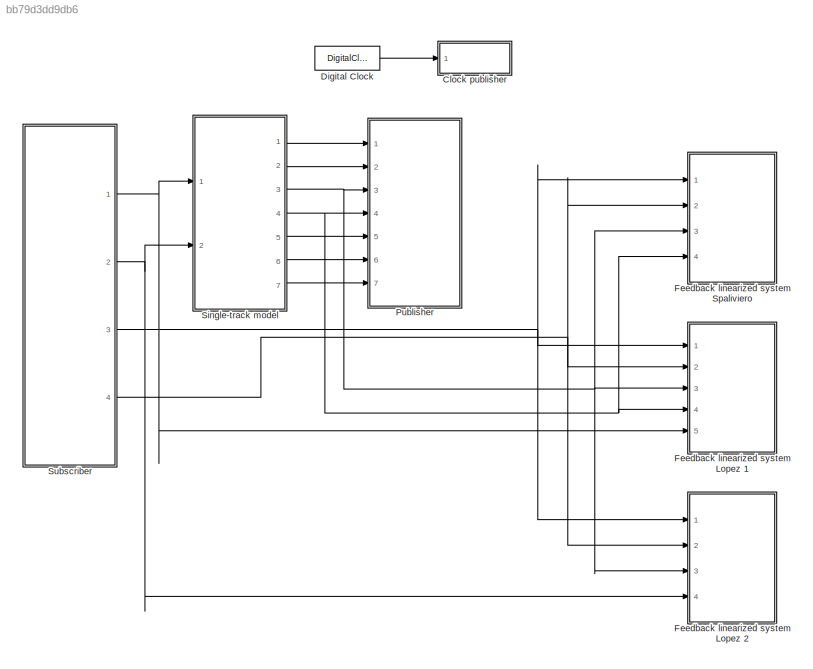
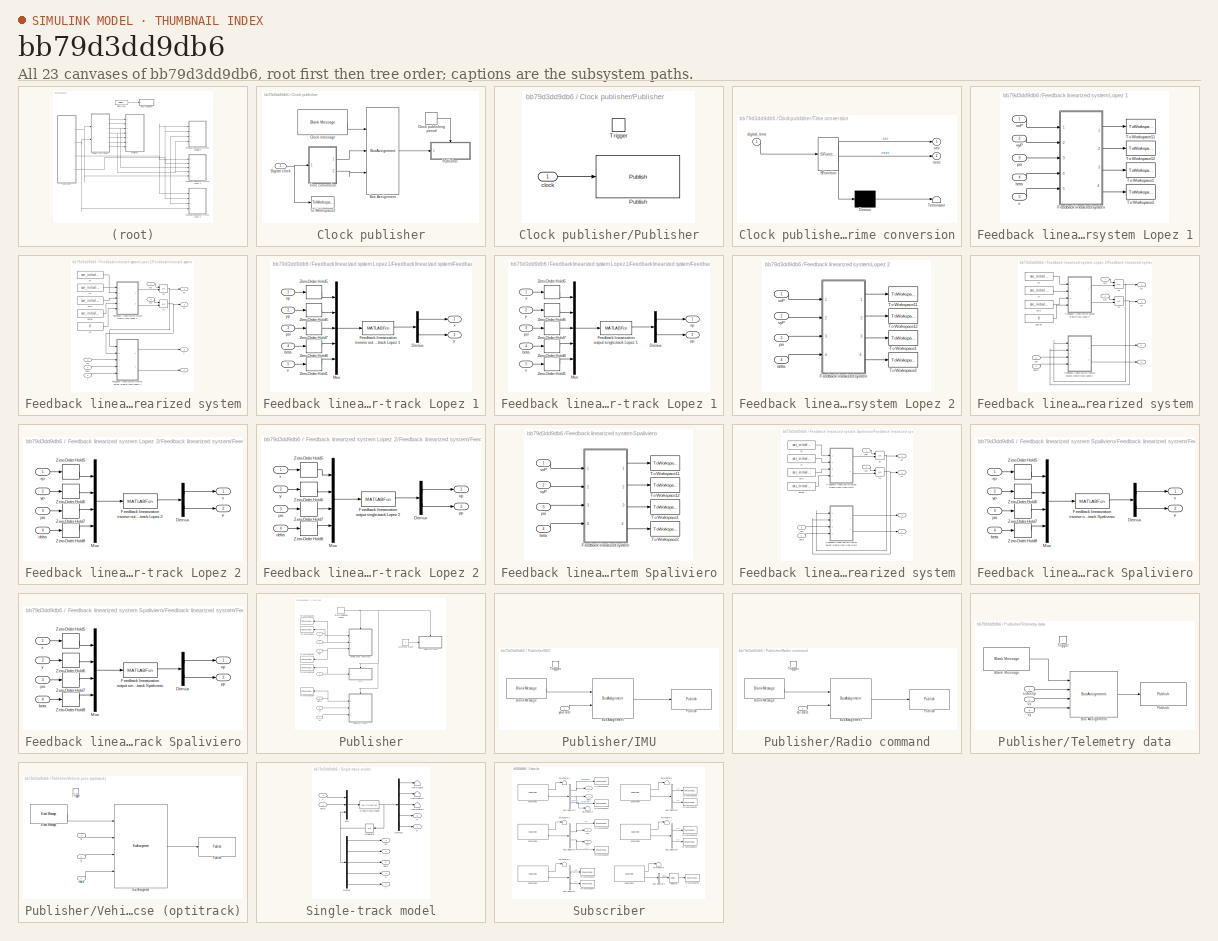
[diagram: thumbnail index - all 23 canvases of the model, root first then tree order]
MODEL slx_bb79d3dd9db6
KIND model
CONFIG AbsTol = auto
CONFIG EnableMultiTasking = off
CONFIG FixedStep = 1e-5
CONFIG MaxStep = auto
CONFIG MinStep = auto
CONFIG RelTol = 1e-3
CONFIG SampleTimeConstraint = Unconstrained
CONFIG Solver = VariableStepAuto
CONFIG SolverName = VariableStepAuto
CONFIG StartTime = 0.0
CONFIG StopTime = 20.0
WORKSPACE source: MAT-file member
WORKSPACE SL_ROS_VariableLengthArrays_MaxSizes: struct (value not decoded)
BLOCK [SubSystem] Clock publisher
  Ports = [1]
  RequestExecContextInheritance = off
BLOCK [BusAssignment] Clock publisher/Bus Assignment
  AssignedSignals = Clock_.Sec,Clock_.Nsec
  DialogController = Simulink.DDGSource_BusAssignment
  Ports = [3, 1]
BLOCK [Reference] Clock publisher/Clock message  REF=robotlib/Blank Message
  Ports = [0, 1]
  SourceBlock = robotlib/Blank Message
  SourceProductBaseCode = RO
  SourceProductName = Robotics System Toolbox
  SourceType = ROS Blank Message
BLOCK [DiscretePulseGenerator] Clock publisher/Clock publishing period
  Period = ROS_clockPublishingPeriod
  Ports = [0, 1]
  PulseType = Time based
  PulseWidth = 50
BLOCK [Inport] Clock publisher/Digital clock
  IconDisplay = Port number
BLOCK [SubSystem] Clock publisher/Publisher
  Ports = [1, 0, 0, 1]
  RequestExecContextInheritance = off
  TreatAsAtomicUnit = on
BLOCK [Reference] Clock publisher/Publisher/Publish  REF=robotlib/Publish
  Ports = [1]
  SourceBlock = robotlib/Publish
  SourceProductBaseCode = RO
  SourceProductName = Robotics System Toolbox
  SourceType = ROS Publish
BLOCK [TriggerPort] Clock publisher/Publisher/Trigger
  Ports = []
  StatesWhenEnabling = held
  VariantControl = Variant
BLOCK [Inport] Clock publisher/Publisher/clock
  IconDisplay = Port number
BLOCK [SubSystem] Clock publisher/Time conversion
  ErrorFcn = Stateflow.Translate.translate
  PermitHierarchicalResolution = ExplicitOnly
  Ports = [1, 2]
  RequestExecContextInheritance = off
  SFBlockType = MATLAB Function
  TreatAsAtomicUnit = on
BLOCK [Demux] Clock publisher/Time conversion/ Demux 
  Outputs = 1
  Ports = [1, 1]
BLOCK [S-Function] Clock publisher/Time conversion/ SFunction 
  EnableBusSupport = on
  FunctionName = sf_sfun
  PortCounts = [1 3]
  Ports = [1, 3]
  SFcnIsStateOwnerBlock = off
  SFunctionDeploymentMode = off
  Tag = Stateflow S-Function singletrack_ideal_model_ROS 2
BLOCK [Terminator] Clock publisher/Time conversion/ Terminator 
BLOCK [Inport] Clock publisher/Time conversion/digital_time
  IconDisplay = Port number
BLOCK [Outport] Clock publisher/Time conversion/nsec
  IconDisplay = Port number
  Port = 2
BLOCK [Outport] Clock publisher/Time conversion/sec
  IconDisplay = Port number
BLOCK [ToWorkspace] Clock publisher/To Workspace2
  FixptAsFi = on
  MaxDataPoints = inf
  Ports = [1]
  SampleTime = meas_Ts
  Save2DSignal = 2-D array (concatenate along first dimension)
  VariableName = t
BLOCK [DigitalClock] Digital Clock
  SampleTime = ROS_clockPublishingPeriod
BLOCK [SubSystem] Feedback linearized system Lopez 1
  Commented = on
  Ports = [5]
  RequestExecContextInheritance = off
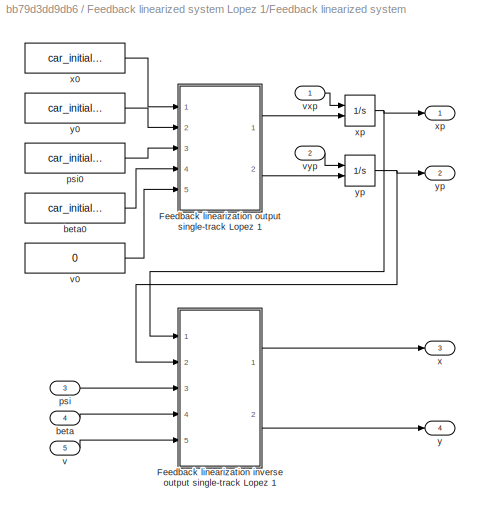
BLOCK [SubSystem] Feedback linearized system Lopez 1/Feedback linearized system
  Ports = [5, 4]
  RequestExecContextInheritance = off
BLOCK [Integrator] Feedback linearized system Lopez 1/Feedback linearized system/ xp 
  InitialCondition = car_state0(4)
  InitialConditionSource = external
  Ports = [2, 1]
BLOCK [Integrator] Feedback linearized system Lopez 1/Feedback linearized system/ yp 
  InitialCondition = car_state0(5)
  InitialConditionSource = external
  Ports = [2, 1]
BLOCK [SubSystem] Feedback linearized system Lopez 1/Feedback linearized system/Feedback linearization inverse output single-track Lopez 1
  Ports = [5, 2]
  RequestExecContextInheritance = off
BLOCK [Demux] Feedback linearized system Lopez 1/Feedback linearized system/Feedback linearization inverse output single-track Lopez 1/Demux
  DisplayOption = bar
  Outputs = 2
  Ports = [1, 2]
BLOCK [MATLABFcn] Feedback linearized system Lopez 1/Feedback linearized system/Feedback linearization inverse output single-track Lopez 1/Feedback linearization inverse output single-track Lopez 1
  MATLABFcn = fblin_outputInverse_singletrack_lopez1(u(1),u(2),u(3),u(4),u(5),P_dist,car_parameters)
  OutputDimensions = 2
  Ports = [1, 1]
BLOCK [Mux] Feedback linearized system Lopez 1/Feedback linearized system/Feedback linearization inverse output single-track Lopez 1/Mux
  DisplayOption = bar
  Inputs = 5
  Ports = [5, 1]
BLOCK [ZeroOrderHold] Feedback linearized system Lopez 1/Feedback linearized system/Feedback linearization inverse output single-track Lopez 1/Zero-Order Hold1
  SampleTime = fblin_Ts
BLOCK [ZeroOrderHold] Feedback linearized system Lopez 1/Feedback linearized system/Feedback linearization inverse output single-track Lopez 1/Zero-Order Hold5
  SampleTime = fblin_Ts
BLOCK [ZeroOrderHold] Feedback linearized system Lopez 1/Feedback linearized system/Feedback linearization inverse output single-track Lopez 1/Zero-Order Hold6
  SampleTime = fblin_Ts
BLOCK [ZeroOrderHold] Feedback linearized system Lopez 1/Feedback linearized system/Feedback linearization inverse output single-track Lopez 1/Zero-Order Hold7
  SampleTime = fblin_Ts
BLOCK [ZeroOrderHold] Feedback linearized system Lopez 1/Feedback linearized system/Feedback linearization inverse output single-track Lopez 1/Zero-Order Hold8
  SampleTime = fblin_Ts
BLOCK [Inport] Feedback linearized system Lopez 1/Feedback linearized system/Feedback linearization inverse output single-track Lopez 1/beta
  IconDisplay = Port number
  Port = 4
BLOCK [Inport] Feedback linearized system Lopez 1/Feedback linearized system/Feedback linearization inverse output single-track Lopez 1/psi
  IconDisplay = Port number
  Port = 3
BLOCK [Inport] Feedback linearized system Lopez 1/Feedback linearized system/Feedback linearization inverse output single-track Lopez 1/v
  IconDisplay = Port number
  Port = 5
BLOCK [Outport] Feedback linearized system Lopez 1/Feedback linearized system/Feedback linearization inverse output single-track Lopez 1/x
  IconDisplay = Port number
BLOCK [Inport] Feedback linearized system Lopez 1/Feedback linearized system/Feedback linearization inverse output single-track Lopez 1/xp
  IconDisplay = Port number
BLOCK [Outport] Feedback linearized system Lopez 1/Feedback linearized system/Feedback linearization inverse output single-track Lopez 1/y
  IconDisplay = Port number
  Port = 2
BLOCK [Inport] Feedback linearized system Lopez 1/Feedback linearized system/Feedback linearization inverse output single-track Lopez 1/yp
  IconDisplay = Port number
  Port = 2
BLOCK [SubSystem] Feedback linearized system Lopez 1/Feedback linearized system/Feedback linearization output single-track Lopez 1
  Ports = [5, 2]
  RequestExecContextInheritance = off
BLOCK [Demux] Feedback linearized system Lopez 1/Feedback linearized system/Feedback linearization output single-track Lopez 1/Demux
  DisplayOption = bar
  Outputs = 2
  Ports = [1, 2]
BLOCK [MATLABFcn] Feedback linearized system Lopez 1/Feedback linearized system/Feedback linearization output single-track Lopez 1/Feedback linearization output single-track Lopez 1
  MATLABFcn = fblin_output_singletrack_lopez1(u(1),u(2),u(3),u(4),u(5),P_dist,car_parameters)
  OutputDimensions = 2
  Ports = [1, 1]
BLOCK [Mux] Feedback linearized system Lopez 1/Feedback linearized system/Feedback linearization output single-track Lopez 1/Mux
  DisplayOption = bar
  Inputs = 5
  Ports = [5, 1]
BLOCK [ZeroOrderHold] Feedback linearized system Lopez 1/Feedback linearized system/Feedback linearization output single-track Lopez 1/Zero-Order Hold1
  SampleTime = fblin_Ts
BLOCK [ZeroOrderHold] Feedback linearized system Lopez 1/Feedback linearized system/Feedback linearization output single-track Lopez 1/Zero-Order Hold5
  SampleTime = fblin_Ts
BLOCK [ZeroOrderHold] Feedback linearized system Lopez 1/Feedback linearized system/Feedback linearization output single-track Lopez 1/Zero-Order Hold6
  SampleTime = fblin_Ts
BLOCK [ZeroOrderHold] Feedback linearized system Lopez 1/Feedback linearized system/Feedback linearization output single-track Lopez 1/Zero-Order Hold7
  SampleTime = fblin_Ts
BLOCK [ZeroOrderHold] Feedback linearized system Lopez 1/Feedback linearized system/Feedback linearization output single-track Lopez 1/Zero-Order Hold8
  SampleTime = fblin_Ts
BLOCK [Inport] Feedback linearized system Lopez 1/Feedback linearized system/Feedback linearization output single-track Lopez 1/beta
  IconDisplay = Port number
  Port = 4
BLOCK [Inport] Feedback linearized system Lopez 1/Feedback linearized system/Feedback linearization output single-track Lopez 1/psi
  IconDisplay = Port number
  Port = 3
BLOCK [Inport] Feedback linearized system Lopez 1/Feedback linearized system/Feedback linearization output single-track Lopez 1/v
  IconDisplay = Port number
  Port = 5
BLOCK [Inport] Feedback linearized system Lopez 1/Feedback linearized system/Feedback linearization output single-track Lopez 1/x
  IconDisplay = Port number
BLOCK [Outport] Feedback linearized system Lopez 1/Feedback linearized system/Feedback linearization output single-track Lopez 1/xp
  IconDisplay = Port number
BLOCK [Inport] Feedback linearized system Lopez 1/Feedback linearized system/Feedback linearization output single-track Lopez 1/y
  IconDisplay = Port number
  Port = 2
BLOCK [Outport] Feedback linearized system Lopez 1/Feedback linearized system/Feedback linearization output single-track Lopez 1/yp
  IconDisplay = Port number
  Port = 2
BLOCK [Inport] Feedback linearized system Lopez 1/Feedback linearized system/beta
  IconDisplay = Port number
  Port = 4
BLOCK [Constant] Feedback linearized system Lopez 1/Feedback linearized system/beta0
  Value = car_initial_state(3)
BLOCK [Inport] Feedback linearized system Lopez 1/Feedback linearized system/psi
  IconDisplay = Port number
  Port = 3
BLOCK [Constant] Feedback linearized system Lopez 1/Feedback linearized system/psi0
  Value = car_initial_state(1)
BLOCK [Inport] Feedback linearized system Lopez 1/Feedback linearized system/v
  IconDisplay = Port number
  Port = 5
BLOCK [Constant] Feedback linearized system Lopez 1/Feedback linearized system/v0
  Value = 0
BLOCK [Inport] Feedback linearized system Lopez 1/Feedback linearized system/vxp
  IconDisplay = Port number
BLOCK [Inport] Feedback linearized system Lopez 1/Feedback linearized system/vyp
  IconDisplay = Port number
  Port = 2
BLOCK [Outport] Feedback linearized system Lopez 1/Feedback linearized system/x
  IconDisplay = Port number
  Port = 3
BLOCK [Constant] Feedback linearized system Lopez 1/Feedback linearized system/x0
  Value = car_initial_state(4)
BLOCK [Outport] Feedback linearized system Lopez 1/Feedback linearized system/xp
  IconDisplay = Port number
BLOCK [Outport] Feedback linearized system Lopez 1/Feedback linearized system/y
  IconDisplay = Port number
  Port = 4
BLOCK [Constant] Feedback linearized system Lopez 1/Feedback linearized system/y0
  Value = car_initial_state(5)
BLOCK [Outport] Feedback linearized system Lopez 1/Feedback linearized system/yp
  IconDisplay = Port number
  Port = 2
BLOCK [ToWorkspace] Feedback linearized system Lopez 1/To Workspace1
  FixptAsFi = on
  MaxDataPoints = inf
  Ports = [1]
  SampleTime = meas_Ts
  Save2DSignal = 2-D array (concatenate along first dimension)
  VariableName = x_id
BLOCK [ToWorkspace] Feedback linearized system Lopez 1/To Workspace11
  FixptAsFi = on
  MaxDataPoints = inf
  Ports = [1]
  SampleTime = meas_Ts
  Save2DSignal = 2-D array (concatenate along first dimension)
  VariableName = xP_id
BLOCK [ToWorkspace] Feedback linearized system Lopez 1/To Workspace12
  FixptAsFi = on
  MaxDataPoints = inf
  Ports = [1]
  SampleTime = meas_Ts
  Save2DSignal = 2-D array (concatenate along first dimension)
  VariableName = yP_id
BLOCK [ToWorkspace] Feedback linearized system Lopez 1/To Workspace2
  FixptAsFi = on
  MaxDataPoints = inf
  Ports = [1]
  SampleTime = meas_Ts
  Save2DSignal = 2-D array (concatenate along first dimension)
  VariableName = y_id
BLOCK [Inport] Feedback linearized system Lopez 1/beta
  IconDisplay = Port number
  Port = 4
BLOCK [Inport] Feedback linearized system Lopez 1/psi
  IconDisplay = Port number
  Port = 3
BLOCK [Inport] Feedback linearized system Lopez 1/v
  IconDisplay = Port number
  Port = 5
BLOCK [Inport] Feedback linearized system Lopez 1/vxP
  IconDisplay = Port number
BLOCK [Inport] Feedback linearized system Lopez 1/vyP
  IconDisplay = Port number
  Port = 2
BLOCK [SubSystem] Feedback linearized system Lopez 2
  Commented = on
  Ports = [4]
  RequestExecContextInheritance = off
BLOCK [SubSystem] Feedback linearized system Lopez 2/Feedback linearized system
  Ports = [4, 4]
  RequestExecContextInheritance = off
BLOCK [Integrator] Feedback linearized system Lopez 2/Feedback linearized system/ xp 
  InitialCondition = car_state0(4)
  InitialConditionSource = external
  Ports = [2, 1]
BLOCK [Integrator] Feedback linearized system Lopez 2/Feedback linearized system/ yp 
  InitialCondition = car_state0(5)
  InitialConditionSource = external
  Ports = [2, 1]
BLOCK [SubSystem] Feedback linearized system Lopez 2/Feedback linearized system/Feedback linearization inverse output single-track Lopez 2
  Ports = [4, 2]
  RequestExecContextInheritance = off
BLOCK [Demux] Feedback linearized system Lopez 2/Feedback linearized system/Feedback linearization inverse output single-track Lopez 2/Demux
  DisplayOption = bar
  Outputs = 2
  Ports = [1, 2]
BLOCK [MATLABFcn] Feedback linearized system Lopez 2/Feedback linearized system/Feedback linearization inverse output single-track Lopez 2/Feedback linearization inverse output single-track Lopez 2
  MATLABFcn = fblin_outputInverse_singletrack_lopez2(u(1),u(2),u(3),u(4),P_dist,car_parameters)
  OutputDimensions = 2
  Ports = [1, 1]
BLOCK [Mux] Feedback linearized system Lopez 2/Feedback linearized system/Feedback linearization inverse output single-track Lopez 2/Mux
  DisplayOption = bar
  Ports = [4, 1]
BLOCK [ZeroOrderHold] Feedback linearized system Lopez 2/Feedback linearized system/Feedback linearization inverse output single-track Lopez 2/Zero-Order Hold5
  SampleTime = fblin_Ts
BLOCK [ZeroOrderHold] Feedback linearized system Lopez 2/Feedback linearized system/Feedback linearization inverse output single-track Lopez 2/Zero-Order Hold6
  SampleTime = fblin_Ts
BLOCK [ZeroOrderHold] Feedback linearized system Lopez 2/Feedback linearized system/Feedback linearization inverse output single-track Lopez 2/Zero-Order Hold7
  SampleTime = fblin_Ts
BLOCK [ZeroOrderHold] Feedback linearized system Lopez 2/Feedback linearized system/Feedback linearization inverse output single-track Lopez 2/Zero-Order Hold8
  SampleTime = fblin_Ts
BLOCK [Inport] Feedback linearized system Lopez 2/Feedback linearized system/Feedback linearization inverse output single-track Lopez 2/delta
  IconDisplay = Port number
  Port = 4
BLOCK [Inport] Feedback linearized system Lopez 2/Feedback linearized system/Feedback linearization inverse output single-track Lopez 2/psi
  IconDisplay = Port number
  Port = 3
BLOCK [Outport] Feedback linearized system Lopez 2/Feedback linearized system/Feedback linearization inverse output single-track Lopez 2/x
  IconDisplay = Port number
BLOCK [Inport] Feedback linearized system Lopez 2/Feedback linearized system/Feedback linearization inverse output single-track Lopez 2/xp
  IconDisplay = Port number
BLOCK [Outport] Feedback linearized system Lopez 2/Feedback linearized system/Feedback linearization inverse output single-track Lopez 2/y
  IconDisplay = Port number
  Port = 2
BLOCK [Inport] Feedback linearized system Lopez 2/Feedback linearized system/Feedback linearization inverse output single-track Lopez 2/yp
  IconDisplay = Port number
  Port = 2
BLOCK [SubSystem] Feedback linearized system Lopez 2/Feedback linearized system/Feedback linearization output single-track Lopez 2
  Ports = [4, 2]
  RequestExecContextInheritance = off
BLOCK [Demux] Feedback linearized system Lopez 2/Feedback linearized system/Feedback linearization output single-track Lopez 2/Demux
  DisplayOption = bar
  Outputs = 2
  Ports = [1, 2]
BLOCK [MATLABFcn] Feedback linearized system Lopez 2/Feedback linearized system/Feedback linearization output single-track Lopez 2/Feedback linearization output single-track Lopez 2
  MATLABFcn = fblin_output_singletrack_lopez2(u(1),u(2),u(3),u(4),P_dist,car_parameters)
  OutputDimensions = 2
  Ports = [1, 1]
BLOCK [Mux] Feedback linearized system Lopez 2/Feedback linearized system/Feedback linearization output single-track Lopez 2/Mux
  DisplayOption = bar
  Ports = [4, 1]
BLOCK [ZeroOrderHold] Feedback linearized system Lopez 2/Feedback linearized system/Feedback linearization output single-track Lopez 2/Zero-Order Hold5
  SampleTime = fblin_Ts
BLOCK [ZeroOrderHold] Feedback linearized system Lopez 2/Feedback linearized system/Feedback linearization output single-track Lopez 2/Zero-Order Hold6
  SampleTime = fblin_Ts
BLOCK [ZeroOrderHold] Feedback linearized system Lopez 2/Feedback linearized system/Feedback linearization output single-track Lopez 2/Zero-Order Hold7
  SampleTime = fblin_Ts
BLOCK [ZeroOrderHold] Feedback linearized system Lopez 2/Feedback linearized system/Feedback linearization output single-track Lopez 2/Zero-Order Hold8
  SampleTime = fblin_Ts
BLOCK [Inport] Feedback linearized system Lopez 2/Feedback linearized system/Feedback linearization output single-track Lopez 2/delta
  IconDisplay = Port number
  Port = 4
BLOCK [Inport] Feedback linearized system Lopez 2/Feedback linearized system/Feedback linearization output single-track Lopez 2/psi
  IconDisplay = Port number
  Port = 3
BLOCK [Inport] Feedback linearized system Lopez 2/Feedback linearized system/Feedback linearization output single-track Lopez 2/x
  IconDisplay = Port number
BLOCK [Outport] Feedback linearized system Lopez 2/Feedback linearized system/Feedback linearization output single-track Lopez 2/xp
  IconDisplay = Port number
BLOCK [Inport] Feedback linearized system Lopez 2/Feedback linearized system/Feedback linearization output single-track Lopez 2/y
  IconDisplay = Port number
  Port = 2
BLOCK [Outport] Feedback linearized system Lopez 2/Feedback linearized system/Feedback linearization output single-track Lopez 2/yp
  IconDisplay = Port number
  Port = 2
BLOCK [Inport] Feedback linearized system Lopez 2/Feedback linearized system/delta
  IconDisplay = Port number
  Port = 4
BLOCK [Constant] Feedback linearized system Lopez 2/Feedback linearized system/delta0
  Value = 0
BLOCK [Inport] Feedback linearized system Lopez 2/Feedback linearized system/psi
  IconDisplay = Port number
  Port = 3
BLOCK [Constant] Feedback linearized system Lopez 2/Feedback linearized system/psi0
  Value = car_initial_state(1)
BLOCK [Inport] Feedback linearized system Lopez 2/Feedback linearized system/vxp
  IconDisplay = Port number
BLOCK [Inport] Feedback linearized system Lopez 2/Feedback linearized system/vyp
  IconDisplay = Port number
  Port = 2
BLOCK [Outport] Feedback linearized system Lopez 2/Feedback linearized system/x
  IconDisplay = Port number
  Port = 3
BLOCK [Constant] Feedback linearized system Lopez 2/Feedback linearized system/x0
  Value = car_initial_state(4)
BLOCK [Outport] Feedback linearized system Lopez 2/Feedback linearized system/xp
  IconDisplay = Port number
BLOCK [Outport] Feedback linearized system Lopez 2/Feedback linearized system/y
  IconDisplay = Port number
  Port = 4
BLOCK [Constant] Feedback linearized system Lopez 2/Feedback linearized system/y0
  Value = car_initial_state(5)
BLOCK [Outport] Feedback linearized system Lopez 2/Feedback linearized system/yp
  IconDisplay = Port number
  Port = 2
BLOCK [ToWorkspace] Feedback linearized system Lopez 2/To Workspace1
  FixptAsFi = on
  MaxDataPoints = inf
  Ports = [1]
  SampleTime = meas_Ts
  Save2DSignal = 2-D array (concatenate along first dimension)
  VariableName = x_id
BLOCK [ToWorkspace] Feedback linearized system Lopez 2/To Workspace11
  FixptAsFi = on
  MaxDataPoints = inf
  Ports = [1]
  SampleTime = meas_Ts
  Save2DSignal = 2-D array (concatenate along first dimension)
  VariableName = xP_id
BLOCK [ToWorkspace] Feedback linearized system Lopez 2/To Workspace12
  FixptAsFi = on
  MaxDataPoints = inf
  Ports = [1]
  SampleTime = meas_Ts
  Save2DSignal = 2-D array (concatenate along first dimension)
  VariableName = yP_id
BLOCK [ToWorkspace] Feedback linearized system Lopez 2/To Workspace2
  FixptAsFi = on
  MaxDataPoints = inf
  Ports = [1]
  SampleTime = meas_Ts
  Save2DSignal = 2-D array (concatenate along first dimension)
  VariableName = y_id
BLOCK [Inport] Feedback linearized system Lopez 2/delta
  IconDisplay = Port number
  Port = 4
BLOCK [Inport] Feedback linearized system Lopez 2/psi
  IconDisplay = Port number
  Port = 3
BLOCK [Inport] Feedback linearized system Lopez 2/vxP
  IconDisplay = Port number
BLOCK [Inport] Feedback linearized system Lopez 2/vyP
  IconDisplay = Port number
  Port = 2
BLOCK [SubSystem] Feedback linearized system Spaliviero
  Commented = on
  Ports = [4]
  RequestExecContextInheritance = off
BLOCK [SubSystem] Feedback linearized system Spaliviero/Feedback linearized system
  Ports = [4, 4]
  RequestExecContextInheritance = off
BLOCK [Integrator] Feedback linearized system Spaliviero/Feedback linearized system/ xp 
  InitialCondition = car_state0(4)
  InitialConditionSource = external
  Ports = [2, 1]
BLOCK [Integrator] Feedback linearized system Spaliviero/Feedback linearized system/ yp 
  InitialCondition = car_state0(5)
  InitialConditionSource = external
  Ports = [2, 1]
BLOCK [SubSystem] Feedback linearized system Spaliviero/Feedback linearized system/Feedback linearization inverse output single-track Spaliviero
  Ports = [4, 2]
  RequestExecContextInheritance = off
BLOCK [Demux] Feedback linearized system Spaliviero/Feedback linearized system/Feedback linearization inverse output single-track Spaliviero/Demux
  DisplayOption = bar
  Outputs = 2
  Ports = [1, 2]
BLOCK [MATLABFcn] Feedback linearized system Spaliviero/Feedback linearized system/Feedback linearization inverse output single-track Spaliviero/Feedback linearization inverse output single-track Spaliviero
  MATLABFcn = fblin_outputInverse_singletrack_spaliviero(u(1),u(2),u(3),u(4),P_dist)
  OutputDimensions = 2
  Ports = [1, 1]
BLOCK [Mux] Feedback linearized system Spaliviero/Feedback linearized system/Feedback linearization inverse output single-track Spaliviero/Mux
  DisplayOption = bar
  Ports = [4, 1]
BLOCK [ZeroOrderHold] Feedback linearized system Spaliviero/Feedback linearized system/Feedback linearization inverse output single-track Spaliviero/Zero-Order Hold5
  SampleTime = fblin_Ts
BLOCK [ZeroOrderHold] Feedback linearized system Spaliviero/Feedback linearized system/Feedback linearization inverse output single-track Spaliviero/Zero-Order Hold6
  SampleTime = fblin_Ts
BLOCK [ZeroOrderHold] Feedback linearized system Spaliviero/Feedback linearized system/Feedback linearization inverse output single-track Spaliviero/Zero-Order Hold7
  SampleTime = fblin_Ts
BLOCK [ZeroOrderHold] Feedback linearized system Spaliviero/Feedback linearized system/Feedback linearization inverse output single-track Spaliviero/Zero-Order Hold8
  SampleTime = fblin_Ts
BLOCK [Inport] Feedback linearized system Spaliviero/Feedback linearized system/Feedback linearization inverse output single-track Spaliviero/beta
  IconDisplay = Port number
  Port = 4
BLOCK [Inport] Feedback linearized system Spaliviero/Feedback linearized system/Feedback linearization inverse output single-track Spaliviero/psi
  IconDisplay = Port number
  Port = 3
BLOCK [Outport] Feedback linearized system Spaliviero/Feedback linearized system/Feedback linearization inverse output single-track Spaliviero/x
  IconDisplay = Port number
BLOCK [Inport] Feedback linearized system Spaliviero/Feedback linearized system/Feedback linearization inverse output single-track Spaliviero/xp
  IconDisplay = Port number
BLOCK [Outport] Feedback linearized system Spaliviero/Feedback linearized system/Feedback linearization inverse output single-track Spaliviero/y
  IconDisplay = Port number
  Port = 2
BLOCK [Inport] Feedback linearized system Spaliviero/Feedback linearized system/Feedback linearization inverse output single-track Spaliviero/yp
  IconDisplay = Port number
  Port = 2
BLOCK [SubSystem] Feedback linearized system Spaliviero/Feedback linearized system/Feedback linearization output single-track Spaliviero
  Ports = [4, 2]
  RequestExecContextInheritance = off
BLOCK [Demux] Feedback linearized system Spaliviero/Feedback linearized system/Feedback linearization output single-track Spaliviero/Demux
  DisplayOption = bar
  Outputs = 2
  Ports = [1, 2]
BLOCK [MATLABFcn] Feedback linearized system Spaliviero/Feedback linearized system/Feedback linearization output single-track Spaliviero/Feedback linearization output single-track Spaliviero
  MATLABFcn = fblin_output_singletrack_spaliviero(u(1),u(2),u(3),u(4),P_dist)
  OutputDimensions = 2
  Ports = [1, 1]
BLOCK [Mux] Feedback linearized system Spaliviero/Feedback linearized system/Feedback linearization output single-track Spaliviero/Mux
  DisplayOption = bar
  Ports = [4, 1]
BLOCK [ZeroOrderHold] Feedback linearized system Spaliviero/Feedback linearized system/Feedback linearization output single-track Spaliviero/Zero-Order Hold5
  SampleTime = fblin_Ts
BLOCK [ZeroOrderHold] Feedback linearized system Spaliviero/Feedback linearized system/Feedback linearization output single-track Spaliviero/Zero-Order Hold6
  SampleTime = fblin_Ts
BLOCK [ZeroOrderHold] Feedback linearized system Spaliviero/Feedback linearized system/Feedback linearization output single-track Spaliviero/Zero-Order Hold7
  SampleTime = fblin_Ts
BLOCK [ZeroOrderHold] Feedback linearized system Spaliviero/Feedback linearized system/Feedback linearization output single-track Spaliviero/Zero-Order Hold8
  SampleTime = fblin_Ts
BLOCK [Inport] Feedback linearized system Spaliviero/Feedback linearized system/Feedback linearization output single-track Spaliviero/beta
  IconDisplay = Port number
  Port = 4
BLOCK [Inport] Feedback linearized system Spaliviero/Feedback linearized system/Feedback linearization output single-track Spaliviero/psi
  IconDisplay = Port number
  Port = 3
BLOCK [Inport] Feedback linearized system Spaliviero/Feedback linearized system/Feedback linearization output single-track Spaliviero/x
  IconDisplay = Port number
BLOCK [Outport] Feedback linearized system Spaliviero/Feedback linearized system/Feedback linearization output single-track Spaliviero/xp
  IconDisplay = Port number
BLOCK [Inport] Feedback linearized system Spaliviero/Feedback linearized system/Feedback linearization output single-track Spaliviero/y
  IconDisplay = Port number
  Port = 2
BLOCK [Outport] Feedback linearized system Spaliviero/Feedback linearized system/Feedback linearization output single-track Spaliviero/yp
  IconDisplay = Port number
  Port = 2
BLOCK [Inport] Feedback linearized system Spaliviero/Feedback linearized system/beta
  IconDisplay = Port number
  Port = 4
BLOCK [Constant] Feedback linearized system Spaliviero/Feedback linearized system/beta0
  Value = car_initial_state(3)
BLOCK [Inport] Feedback linearized system Spaliviero/Feedback linearized system/psi
  IconDisplay = Port number
  Port = 3
BLOCK [Constant] Feedback linearized system Spaliviero/Feedback linearized system/psi0
  Value = car_initial_state(1)
BLOCK [Inport] Feedback linearized system Spaliviero/Feedback linearized system/vxp
  IconDisplay = Port number
BLOCK [Inport] Feedback linearized system Spaliviero/Feedback linearized system/vyp
  IconDisplay = Port number
  Port = 2
BLOCK [Outport] Feedback linearized system Spaliviero/Feedback linearized system/x
  IconDisplay = Port number
  Port = 3
BLOCK [Constant] Feedback linearized system Spaliviero/Feedback linearized system/x0
  Value = car_initial_state(4)
BLOCK [Outport] Feedback linearized system Spaliviero/Feedback linearized system/xp
  IconDisplay = Port number
BLOCK [Outport] Feedback linearized system Spaliviero/Feedback linearized system/y
  IconDisplay = Port number
  Port = 4
BLOCK [Constant] Feedback linearized system Spaliviero/Feedback linearized system/y0
  Value = car_initial_state(5)
BLOCK [Outport] Feedback linearized system Spaliviero/Feedback linearized system/yp
  IconDisplay = Port number
  Port = 2
BLOCK [ToWorkspace] Feedback linearized system Spaliviero/To Workspace1
  FixptAsFi = on
  MaxDataPoints = inf
  Ports = [1]
  SampleTime = meas_Ts
  Save2DSignal = 2-D array (concatenate along first dimension)
  VariableName = x_id
BLOCK [ToWorkspace] Feedback linearized system Spaliviero/To Workspace11
  FixptAsFi = on
  MaxDataPoints = inf
  Ports = [1]
  SampleTime = meas_Ts
  Save2DSignal = 2-D array (concatenate along first dimension)
  VariableName = xP_id
BLOCK [ToWorkspace] Feedback linearized system Spaliviero/To Workspace12
  FixptAsFi = on
  MaxDataPoints = inf
  Ports = [1]
  SampleTime = meas_Ts
  Save2DSignal = 2-D array (concatenate along first dimension)
  VariableName = yP_id
BLOCK [ToWorkspace] Feedback linearized system Spaliviero/To Workspace2
  FixptAsFi = on
  MaxDataPoints = inf
  Ports = [1]
  SampleTime = meas_Ts
  Save2DSignal = 2-D array (concatenate along first dimension)
  VariableName = y_id
BLOCK [Inport] Feedback linearized system Spaliviero/beta
  IconDisplay = Port number
  Port = 4
BLOCK [Inport] Feedback linearized system Spaliviero/psi
  IconDisplay = Port number
  Port = 3
BLOCK [Inport] Feedback linearized system Spaliviero/vxP
  IconDisplay = Port number
BLOCK [Inport] Feedback linearized system Spaliviero/vyP
  IconDisplay = Port number
  Port = 2
BLOCK [SubSystem] Publisher
  Ports = [7]
  RequestExecContextInheritance = off
BLOCK [Constant] Publisher/Automatic state
  OutDataTypeStr = uint8
  Value = 2
BLOCK [SubSystem] Publisher/IMU
  Ports = [1, 0, 0, 1]
  RequestExecContextInheritance = off
  TreatAsAtomicUnit = on
BLOCK [Reference] Publisher/IMU/Blank Message  REF=robotlib/Blank Message
  Ports = [0, 1]
  SourceBlock = robotlib/Blank Message
  SourceProductBaseCode = RO
  SourceProductName = Robotics System Toolbox
  SourceType = ROS Blank Message
BLOCK [BusAssignment] Publisher/IMU/Bus Assignment
  AssignedSignals = AngularVelocity.Z
  DialogController = Simulink.DDGSource_BusAssignment
  Ports = [2, 1]
BLOCK [Reference] Publisher/IMU/Publish  REF=robotlib/Publish
  Ports = [1]
  SourceBlock = robotlib/Publish
  SourceProductBaseCode = RO
  SourceProductName = Robotics System Toolbox
  SourceType = ROS Publish
BLOCK [TriggerPort] Publisher/IMU/Trigger
  Ports = []
  StatesWhenEnabling = held
  VariantControl = Variant
BLOCK [Inport] Publisher/IMU/yaw rate
  IconDisplay = Port number
BLOCK [SubSystem] Publisher/Radio command
  Ports = [1, 0, 0, 1]
  RequestExecContextInheritance = off
  TreatAsAtomicUnit = on
BLOCK [Reference] Publisher/Radio command/Blank Message  REF=robotlib/Blank Message
  Ports = [0, 1]
  SourceBlock = robotlib/Blank Message
  SourceProductBaseCode = RO
  SourceProductName = Robotics System Toolbox
  SourceType = ROS Blank Message
BLOCK [BusAssignment] Publisher/Radio command/Bus Assignment
  AssignedSignals = State
  DialogController = Simulink.DDGSource_BusAssignment
  Ports = [2, 1]
BLOCK [Reference] Publisher/Radio command/Publish  REF=robotlib/Publish
  Ports = [1]
  SourceBlock = robotlib/Publish
  SourceProductBaseCode = RO
  SourceProductName = Robotics System Toolbox
  SourceType = ROS Publish
BLOCK [TriggerPort] Publisher/Radio command/Trigger
  Ports = []
  StatesWhenEnabling = held
  VariantControl = Variant
BLOCK [Inport] Publisher/Radio command/car state
  IconDisplay = Port number
BLOCK [DiscretePulseGenerator] Publisher/State publishing period
  Period = ROS_statePublishingPeriod
  Ports = [0, 1]
  PulseType = Time based
  PulseWidth = 50
BLOCK [SubSystem] Publisher/Telemetry data
  Ports = [3, 0, 0, 1]
  RequestExecContextInheritance = off
  TreatAsAtomicUnit = on
BLOCK [Reference] Publisher/Telemetry data/Blank Message  REF=robotlib/Blank Message
  Ports = [0, 1]
  SourceBlock = robotlib/Blank Message
  SourceProductBaseCode = RO
  SourceProductName = Robotics System Toolbox
  SourceType = ROS Blank Message
BLOCK [BusAssignment] Publisher/Telemetry data/Bus Assignment
  AssignedSignals = Sideslip,Vx,Vy
  DialogController = Simulink.DDGSource_BusAssignment
  Ports = [4, 1]
BLOCK [Reference] Publisher/Telemetry data/Publish  REF=robotlib/Publish
  Ports = [1]
  SourceBlock = robotlib/Publish
  SourceProductBaseCode = RO
  SourceProductName = Robotics System Toolbox
  SourceType = ROS Publish
BLOCK [TriggerPort] Publisher/Telemetry data/Trigger
  Ports = []
  StatesWhenEnabling = held
  VariantControl = Variant
BLOCK [Inport] Publisher/Telemetry data/sideslip
  IconDisplay = Port number
BLOCK [Inport] Publisher/Telemetry data/vx
  IconDisplay = Port number
  Port = 2
BLOCK [Inport] Publisher/Telemetry data/vy
  IconDisplay = Port number
  Port = 3
BLOCK [ToWorkspace] Publisher/To Workspace
  FixptAsFi = on
  MaxDataPoints = inf
  Ports = [1]
  SampleTime = meas_Ts
  Save2DSignal = 2-D array (concatenate along first dimension)
  VariableName = x
BLOCK [ToWorkspace] Publisher/To Workspace1
  FixptAsFi = on
  MaxDataPoints = inf
  Ports = [1]
  SampleTime = meas_Ts
  Save2DSignal = 2-D array (concatenate along first dimension)
  VariableName = y
BLOCK [ToWorkspace] Publisher/To Workspace2
  FixptAsFi = on
  MaxDataPoints = inf
  Ports = [1]
  SampleTime = meas_Ts
  Save2DSignal = 2-D array (concatenate along first dimension)
  VariableName = psi
BLOCK [ToWorkspace] Publisher/To Workspace3
  FixptAsFi = on
  MaxDataPoints = inf
  Ports = [1]
  SampleTime = meas_Ts
  Save2DSignal = 2-D array (concatenate along first dimension)
  VariableName = r
BLOCK [ToWorkspace] Publisher/To Workspace4
  FixptAsFi = on
  MaxDataPoints = inf
  Ports = [1]
  SampleTime = meas_Ts
  Save2DSignal = 2-D array (concatenate along first dimension)
  VariableName = beta
BLOCK [SubSystem] Publisher/Vehicle pose (optitrack)
  Ports = [3, 0, 0, 1]
  RequestExecContextInheritance = off
  TreatAsAtomicUnit = on
BLOCK [Reference] Publisher/Vehicle pose (optitrack)/Blank Message  REF=robotlib/Blank Message
  Ports = [0, 1]
  SourceBlock = robotlib/Blank Message
  SourceProductBaseCode = RO
  SourceProductName = Robotics System Toolbox
  SourceType = ROS Blank Message
BLOCK [BusAssignment] Publisher/Vehicle pose (optitrack)/Bus Assignment
  AssignedSignals = X,Y,Theta
  DialogController = Simulink.DDGSource_BusAssignment
  Ports = [4, 1]
BLOCK [Reference] Publisher/Vehicle pose (optitrack)/Publish  REF=robotlib/Publish
  Ports = [1]
  SourceBlock = robotlib/Publish
  SourceProductBaseCode = RO
  SourceProductName = Robotics System Toolbox
  SourceType = ROS Publish
BLOCK [TriggerPort] Publisher/Vehicle pose (optitrack)/Trigger
  Ports = []
  StatesWhenEnabling = held
  VariantControl = Variant
BLOCK [Inport] Publisher/Vehicle pose (optitrack)/theta
  IconDisplay = Port number
  Port = 3
BLOCK [Inport] Publisher/Vehicle pose (optitrack)/x
  IconDisplay = Port number
BLOCK [Inport] Publisher/Vehicle pose (optitrack)/y
  IconDisplay = Port number
  Port = 2
BLOCK [Inport] Publisher/beta
  IconDisplay = Port number
  Port = 4
BLOCK [Inport] Publisher/psi
  IconDisplay = Port number
  Port = 3
BLOCK [Inport] Publisher/r
  IconDisplay = Port number
  Port = 5
BLOCK [Inport] Publisher/vx
  IconDisplay = Port number
  Port = 6
BLOCK [Inport] Publisher/vy
  IconDisplay = Port number
  Port = 7
BLOCK [Inport] Publisher/x
  IconDisplay = Port number
BLOCK [Inport] Publisher/y
  IconDisplay = Port number
  Port = 2
BLOCK [SubSystem] Single-track model
  Ports = [2, 7]
  RequestExecContextInheritance = off
BLOCK [Demux] Single-track model/Demux
  DisplayOption = bar
  Outputs = 5
  Ports = [1, 5]
BLOCK [Demux] Single-track model/Demux1
  DisplayOption = bar
  Outputs = 5
  Ports = [1, 5]
BLOCK [Integrator] Single-track model/Integrator
  InitialCondition = car_state0
  Ports = [1, 1]
BLOCK [Mux] Single-track model/Mux
  DisplayOption = bar
  Inputs = 3
  Ports = [3, 1]
BLOCK [MATLABFcn] Single-track model/Single-track model
  MATLABFcn = singleTrack_model(u(1:2),u(3:7),car_parameters)
  OutputDimensions = 5
  Ports = [1, 1]
BLOCK [Terminator] Single-track model/Terminator
BLOCK [Terminator] Single-track model/Terminator1
BLOCK [Terminator] Single-track model/Terminator2
BLOCK [Outport] Single-track model/beta
  IconDisplay = Port number
  Port = 4
BLOCK [Inport] Single-track model/delta
  IconDisplay = Port number
  Port = 2
BLOCK [Outport] Single-track model/psi
  IconDisplay = Port number
  Port = 3
BLOCK [Outport] Single-track model/r
  IconDisplay = Port number
  Port = 5
BLOCK [Inport] Single-track model/v
  IconDisplay = Port number
BLOCK [Outport] Single-track model/vx
  IconDisplay = Port number
  Port = 6
BLOCK [Outport] Single-track model/vy
  IconDisplay = Port number
  Port = 7
BLOCK [Outport] Single-track model/x
  IconDisplay = Port number
BLOCK [Outport] Single-track model/y
  IconDisplay = Port number
  Port = 2
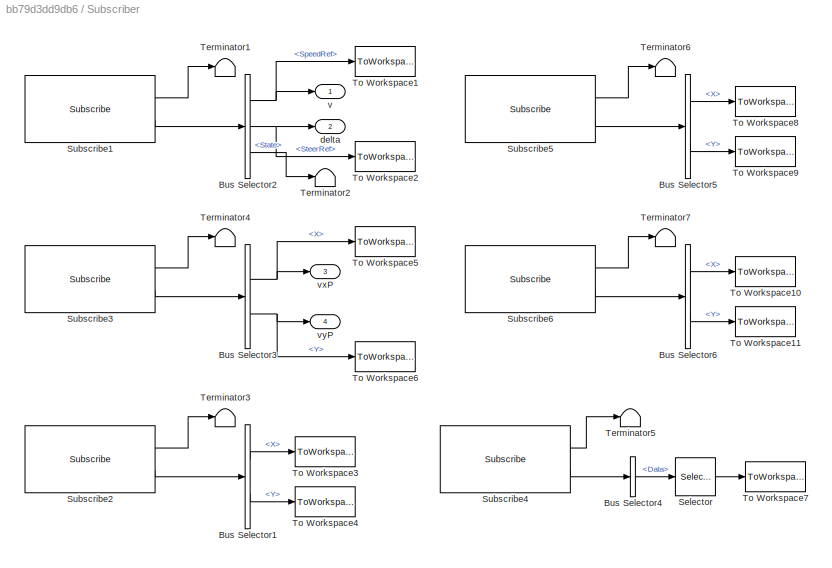
BLOCK [SubSystem] Subscriber
  Ports = [0, 4]
  RequestExecContextInheritance = off
BLOCK [BusSelector] Subscriber/Bus Selector1
  OutputAsBus = off
  OutputSignals = Point.X,Point.Y
  Ports = [1, 2]
BLOCK [BusSelector] Subscriber/Bus Selector2
  OutputAsBus = off
  OutputSignals = SpeedRef,SteerRef,State
  Ports = [1, 3]
BLOCK [BusSelector] Subscriber/Bus Selector3
  OutputAsBus = off
  OutputSignals = Twist.Linear.X,Twist.Linear.Y
  Ports = [1, 2]
BLOCK [BusSelector] Subscriber/Bus Selector4
  OutputAsBus = off
  OutputSignals = Data
  Ports = [1, 1]
BLOCK [BusSelector] Subscriber/Bus Selector5
  OutputAsBus = off
  OutputSignals = Point.X,Point.Y
  Ports = [1, 2]
BLOCK [BusSelector] Subscriber/Bus Selector6
  OutputAsBus = off
  OutputSignals = Point.X,Point.Y
  Ports = [1, 2]
BLOCK [Selector] Subscriber/Selector
  IndexOptions = Starting index (dialog)
  Indices = 1
  InputPortWidth = 128
  OutputSizes = 9
  Ports = [1, 1]
BLOCK [Reference] Subscriber/Subscribe1  REF=robotlib/Subscribe
  Ports = [0, 2]
  SourceBlock = robotlib/Subscribe
  SourceProductBaseCode = RO
  SourceProductName = Robotics System Toolbox
  SourceType = ROS Subscribe
BLOCK [Reference] Subscriber/Subscribe2  REF=robotlib/Subscribe
  Ports = [0, 2]
  SourceBlock = robotlib/Subscribe
  SourceProductBaseCode = RO
  SourceProductName = Robotics System Toolbox
  SourceType = ROS Subscribe
BLOCK [Reference] Subscriber/Subscribe3  REF=robotlib/Subscribe
  Ports = [0, 2]
  SourceBlock = robotlib/Subscribe
  SourceProductBaseCode = RO
  SourceProductName = Robotics System Toolbox
  SourceType = ROS Subscribe
BLOCK [Reference] Subscriber/Subscribe4  REF=robotlib/Subscribe
  Ports = [0, 2]
  SourceBlock = robotlib/Subscribe
  SourceProductBaseCode = RO
  SourceProductName = Robotics System Toolbox
  SourceType = ROS Subscribe
BLOCK [Reference] Subscriber/Subscribe5  REF=robotlib/Subscribe
  Ports = [0, 2]
  SourceBlock = robotlib/Subscribe
  SourceProductBaseCode = RO
  SourceProductName = Robotics System Toolbox
  SourceType = ROS Subscribe
BLOCK [Reference] Subscriber/Subscribe6  REF=robotlib/Subscribe
  Ports = [0, 2]
  SourceBlock = robotlib/Subscribe
  SourceProductBaseCode = RO
  SourceProductName = Robotics System Toolbox
  SourceType = ROS Subscribe
BLOCK [Terminator] Subscriber/Terminator1
BLOCK [Terminator] Subscriber/Terminator2
BLOCK [Terminator] Subscriber/Terminator3
BLOCK [Terminator] Subscriber/Terminator4
BLOCK [Terminator] Subscriber/Terminator5
BLOCK [Terminator] Subscriber/Terminator6
BLOCK [Terminator] Subscriber/Terminator7
BLOCK [ToWorkspace] Subscriber/To Workspace1
  FixptAsFi = on
  MaxDataPoints = inf
  Ports = [1]
  SampleTime = meas_Ts
  Save2DSignal = 2-D array (concatenate along first dimension)
  VariableName = v
BLOCK [ToWorkspace] Subscriber/To Workspace10
  FixptAsFi = on
  MaxDataPoints = inf
  Ports = [1]
  SampleTime = meas_Ts
  Save2DSignal = 2-D array (concatenate along first dimension)
  VariableName = x_ref
BLOCK [ToWorkspace] Subscriber/To Workspace11
  FixptAsFi = on
  MaxDataPoints = inf
  Ports = [1]
  SampleTime = meas_Ts
  Save2DSignal = 2-D array (concatenate along first dimension)
  VariableName = y_ref
BLOCK [ToWorkspace] Subscriber/To Workspace2
  FixptAsFi = on
  MaxDataPoints = inf
  Ports = [1]
  SampleTime = meas_Ts
  Save2DSignal = 2-D array (concatenate along first dimension)
  VariableName = delta
BLOCK [ToWorkspace] Subscriber/To Workspace3
  FixptAsFi = on
  MaxDataPoints = inf
  Ports = [1]
  SampleTime = meas_Ts
  Save2DSignal = 2-D array (concatenate along first dimension)
  VariableName = xP_act
BLOCK [ToWorkspace] Subscriber/To Workspace4
  FixptAsFi = on
  MaxDataPoints = inf
  Ports = [1]
  SampleTime = meas_Ts
  Save2DSignal = 2-D array (concatenate along first dimension)
  VariableName = yP_act
BLOCK [ToWorkspace] Subscriber/To Workspace5
  FixptAsFi = on
  MaxDataPoints = inf
  Ports = [1]
  SampleTime = meas_Ts
  Save2DSignal = 2-D array (concatenate along first dimension)
  VariableName = vxP
BLOCK [ToWorkspace] Subscriber/To Workspace6
  FixptAsFi = on
  MaxDataPoints = inf
  Ports = [1]
  SampleTime = meas_Ts
  Save2DSignal = 2-D array (concatenate along first dimension)
  VariableName = vyP
BLOCK [ToWorkspace] Subscriber/To Workspace7
  FixptAsFi = on
  MaxDataPoints = inf
  Ports = [1]
  SampleTime = meas_Ts
  Save2DSignal = 2-D array (concatenate along first dimension)
  VariableName = vehicleState
BLOCK [ToWorkspace] Subscriber/To Workspace8
  FixptAsFi = on
  MaxDataPoints = inf
  Ports = [1]
  SampleTime = meas_Ts
  Save2DSignal = 2-D array (concatenate along first dimension)
  VariableName = xP_ref
BLOCK [ToWorkspace] Subscriber/To Workspace9
  FixptAsFi = on
  MaxDataPoints = inf
  Ports = [1]
  SampleTime = meas_Ts
  Save2DSignal = 2-D array (concatenate along first dimension)
  VariableName = yP_ref
BLOCK [Outport] Subscriber/delta
  IconDisplay = Port number
  Port = 2
BLOCK [Outport] Subscriber/v
  IconDisplay = Port number
BLOCK [Outport] Subscriber/vxP
  IconDisplay = Port number
  Port = 3
BLOCK [Outport] Subscriber/vyP
  IconDisplay = Port number
  Port = 4
LINE Clock publisher/Bus Assignment:1 -> Clock publisher/Publisher:1
LINE Clock publisher/Clock message:1 -> Clock publisher/Bus Assignment:1
LINE Clock publisher/Clock publishing period:1 -> Clock publisher/Publisher:trigger
NET Clock publisher/Digital clock:1 -> Clock publisher/Time conversion:1, Clock publisher/To Workspace2:1
LINE Clock publisher/Publisher/clock:1 -> Clock publisher/Publisher/Publish:1
LINE Clock publisher/Time conversion:1 -> Clock publisher/Bus Assignment:2
LINE Clock publisher/Time conversion:2 -> Clock publisher/Bus Assignment:3
LINE Digital Clock:1 -> Clock publisher:1
NET Feedback linearized system Lopez 1/Feedback linearized system/ xp :1 -> Feedback linearized system Lopez 1/Feedback linearized system/Feedback linearization inverse output single-track Lopez 1:1, Feedback linearized system Lopez 1/Feedback linearized system/xp:1
NET Feedback linearized system Lopez 1/Feedback linearized system/ yp :1 -> Feedback linearized system Lopez 1/Feedback linearized system/Feedback linearization inverse output single-track Lopez 1:2, Feedback linearized system Lopez 1/Feedback linearized system/yp:1
LINE Feedback linearized system Lopez 1/Feedback linearized system/Feedback linearization inverse output single-track Lopez 1/Demux:1 -> Feedback linearized system Lopez 1/Feedback linearized system/Feedback linearization inverse output single-track Lopez 1/x:1
LINE Feedback linearized system Lopez 1/Feedback linearized system/Feedback linearization inverse output single-track Lopez 1/Demux:2 -> Feedback linearized system Lopez 1/Feedback linearized system/Feedback linearization inverse output single-track Lopez 1/y:1
LINE Feedback linearized system Lopez 1/Feedback linearized system/Feedback linearization inverse output single-track Lopez 1/Feedback linearization inverse output single-track Lopez 1:1 -> Feedback linearized system Lopez 1/Feedback linearized system/Feedback linearization inverse output single-track Lopez 1/Demux:1
LINE Feedback linearized system Lopez 1/Feedback linearized system/Feedback linearization inverse output single-track Lopez 1/Mux:1 -> Feedback linearized system Lopez 1/Feedback linearized system/Feedback linearization inverse output single-track Lopez 1/Feedback linearization inverse output single-track Lopez 1:1
LINE Feedback linearized system Lopez 1/Feedback linearized system/Feedback linearization inverse output single-track Lopez 1/Zero-Order Hold1:1 -> Feedback linearized system Lopez 1/Feedback linearized system/Feedback linearization inverse output single-track Lopez 1/Mux:5
LINE Feedback linearized system Lopez 1/Feedback linearized system/Feedback linearization inverse output single-track Lopez 1/Zero-Order Hold5:1 -> Feedback linearized system Lopez 1/Feedback linearized system/Feedback linearization inverse output single-track Lopez 1/Mux:1
LINE Feedback linearized system Lopez 1/Feedback linearized system/Feedback linearization inverse output single-track Lopez 1/Zero-Order Hold6:1 -> Feedback linearized system Lopez 1/Feedback linearized system/Feedback linearization inverse output single-track Lopez 1/Mux:2
LINE Feedback linearized system Lopez 1/Feedback linearized system/Feedback linearization inverse output single-track Lopez 1/Zero-Order Hold7:1 -> Feedback linearized system Lopez 1/Feedback linearized system/Feedback linearization inverse output single-track Lopez 1/Mux:3
LINE Feedback linearized system Lopez 1/Feedback linearized system/Feedback linearization inverse output single-track Lopez 1/Zero-Order Hold8:1 -> Feedback linearized system Lopez 1/Feedback linearized system/Feedback linearization inverse output single-track Lopez 1/Mux:4
LINE Feedback linearized system Lopez 1/Feedback linearized system/Feedback linearization inverse output single-track Lopez 1/beta:1 -> Feedback linearized system Lopez 1/Feedback linearized system/Feedback linearization inverse output single-track Lopez 1/Zero-Order Hold8:1
LINE Feedback linearized system Lopez 1/Feedback linearized system/Feedback linearization inverse output single-track Lopez 1/psi:1 -> Feedback linearized system Lopez 1/Feedback linearized system/Feedback linearization inverse output single-track Lopez 1/Zero-Order Hold7:1
LINE Feedback linearized system Lopez 1/Feedback linearized system/Feedback linearization inverse output single-track Lopez 1/v:1 -> Feedback linearized system Lopez 1/Feedback linearized system/Feedback linearization inverse output single-track Lopez 1/Zero-Order Hold1:1
LINE Feedback linearized system Lopez 1/Feedback linearized system/Feedback linearization inverse output single-track Lopez 1/xp:1 -> Feedback linearized system Lopez 1/Feedback linearized system/Feedback linearization inverse output single-track Lopez 1/Zero-Order Hold5:1
LINE Feedback linearized system Lopez 1/Feedback linearized system/Feedback linearization inverse output single-track Lopez 1/yp:1 -> Feedback linearized system Lopez 1/Feedback linearized system/Feedback linearization inverse output single-track Lopez 1/Zero-Order Hold6:1
LINE Feedback linearized system Lopez 1/Feedback linearized system/Feedback linearization inverse output single-track Lopez 1:1 -> Feedback linearized system Lopez 1/Feedback linearized system/x:1
LINE Feedback linearized system Lopez 1/Feedback linearized system/Feedback linearization inverse output single-track Lopez 1:2 -> Feedback linearized system Lopez 1/Feedback linearized system/y:1
LINE Feedback linearized system Lopez 1/Feedback linearized system/Feedback linearization output single-track Lopez 1/Demux:1 -> Feedback linearized system Lopez 1/Feedback linearized system/Feedback linearization output single-track Lopez 1/xp:1
LINE Feedback linearized system Lopez 1/Feedback linearized system/Feedback linearization output single-track Lopez 1/Demux:2 -> Feedback linearized system Lopez 1/Feedback linearized system/Feedback linearization output single-track Lopez 1/yp:1
LINE Feedback linearized system Lopez 1/Feedback linearized system/Feedback linearization output single-track Lopez 1/Feedback linearization output single-track Lopez 1:1 -> Feedback linearized system Lopez 1/Feedback linearized system/Feedback linearization output single-track Lopez 1/Demux:1
LINE Feedback linearized system Lopez 1/Feedback linearized system/Feedback linearization output single-track Lopez 1/Mux:1 -> Feedback linearized system Lopez 1/Feedback linearized system/Feedback linearization output single-track Lopez 1/Feedback linearization output single-track Lopez 1:1
LINE Feedback linearized system Lopez 1/Feedback linearized system/Feedback linearization output single-track Lopez 1/Zero-Order Hold1:1 -> Feedback linearized system Lopez 1/Feedback linearized system/Feedback linearization output single-track Lopez 1/Mux:5
LINE Feedback linearized system Lopez 1/Feedback linearized system/Feedback linearization output single-track Lopez 1/Zero-Order Hold5:1 -> Feedback linearized system Lopez 1/Feedback linearized system/Feedback linearization output single-track Lopez 1/Mux:1
LINE Feedback linearized system Lopez 1/Feedback linearized system/Feedback linearization output single-track Lopez 1/Zero-Order Hold6:1 -> Feedback linearized system Lopez 1/Feedback linearized system/Feedback linearization output single-track Lopez 1/Mux:2
LINE Feedback linearized system Lopez 1/Feedback linearized system/Feedback linearization output single-track Lopez 1/Zero-Order Hold7:1 -> Feedback linearized system Lopez 1/Feedback linearized system/Feedback linearization output single-track Lopez 1/Mux:3
LINE Feedback linearized system Lopez 1/Feedback linearized system/Feedback linearization output single-track Lopez 1/Zero-Order Hold8:1 -> Feedback linearized system Lopez 1/Feedback linearized system/Feedback linearization output single-track Lopez 1/Mux:4
LINE Feedback linearized system Lopez 1/Feedback linearized system/Feedback linearization output single-track Lopez 1/beta:1 -> Feedback linearized system Lopez 1/Feedback linearized system/Feedback linearization output single-track Lopez 1/Zero-Order Hold8:1
LINE Feedback linearized system Lopez 1/Feedback linearized system/Feedback linearization output single-track Lopez 1/psi:1 -> Feedback linearized system Lopez 1/Feedback linearized system/Feedback linearization output single-track Lopez 1/Zero-Order Hold7:1
LINE Feedback linearized system Lopez 1/Feedback linearized system/Feedback linearization output single-track Lopez 1/v:1 -> Feedback linearized system Lopez 1/Feedback linearized system/Feedback linearization output single-track Lopez 1/Zero-Order Hold1:1
LINE Feedback linearized system Lopez 1/Feedback linearized system/Feedback linearization output single-track Lopez 1/x:1 -> Feedback linearized system Lopez 1/Feedback linearized system/Feedback linearization output single-track Lopez 1/Zero-Order Hold5:1
LINE Feedback linearized system Lopez 1/Feedback linearized system/Feedback linearization output single-track Lopez 1/y:1 -> Feedback linearized system Lopez 1/Feedback linearized system/Feedback linearization output single-track Lopez 1/Zero-Order Hold6:1
LINE Feedback linearized system Lopez 1/Feedback linearized system/Feedback linearization output single-track Lopez 1:1 -> Feedback linearized system Lopez 1/Feedback linearized system/ xp :2
LINE Feedback linearized system Lopez 1/Feedback linearized system/Feedback linearization output single-track Lopez 1:2 -> Feedback linearized system Lopez 1/Feedback linearized system/ yp :2
LINE Feedback linearized system Lopez 1/Feedback linearized system/beta0:1 -> Feedback linearized system Lopez 1/Feedback linearized system/Feedback linearization output single-track Lopez 1:4
LINE Feedback linearized system Lopez 1/Feedback linearized system/beta:1 -> Feedback linearized system Lopez 1/Feedback linearized system/Feedback linearization inverse output single-track Lopez 1:4
LINE Feedback linearized system Lopez 1/Feedback linearized system/psi0:1 -> Feedback linearized system Lopez 1/Feedback linearized system/Feedback linearization output single-track Lopez 1:3
LINE Feedback linearized system Lopez 1/Feedback linearized system/psi:1 -> Feedback linearized system Lopez 1/Feedback linearized system/Feedback linearization inverse output single-track Lopez 1:3
LINE Feedback linearized system Lopez 1/Feedback linearized system/v0:1 -> Feedback linearized system Lopez 1/Feedback linearized system/Feedback linearization output single-track Lopez 1:5
LINE Feedback linearized system Lopez 1/Feedback linearized system/v:1 -> Feedback linearized system Lopez 1/Feedback linearized system/Feedback linearization inverse output single-track Lopez 1:5
LINE Feedback linearized system Lopez 1/Feedback linearized system/vxp:1 -> Feedback linearized system Lopez 1/Feedback linearized system/ xp :1
LINE Feedback linearized system Lopez 1/Feedback linearized system/vyp:1 -> Feedback linearized system Lopez 1/Feedback linearized system/ yp :1
LINE Feedback linearized system Lopez 1/Feedback linearized system/x0:1 -> Feedback linearized system Lopez 1/Feedback linearized system/Feedback linearization output single-track Lopez 1:1
LINE Feedback linearized system Lopez 1/Feedback linearized system/y0:1 -> Feedback linearized system Lopez 1/Feedback linearized system/Feedback linearization output single-track Lopez 1:2
LINE Feedback linearized system Lopez 1/Feedback linearized system:1 -> Feedback linearized system Lopez 1/To Workspace11:1
LINE Feedback linearized system Lopez 1/Feedback linearized system:2 -> Feedback linearized system Lopez 1/To Workspace12:1
LINE Feedback linearized system Lopez 1/Feedback linearized system:3 -> Feedback linearized system Lopez 1/To Workspace1:1
LINE Feedback linearized system Lopez 1/Feedback linearized system:4 -> Feedback linearized system Lopez 1/To Workspace2:1
LINE Feedback linearized system Lopez 1/beta:1 -> Feedback linearized system Lopez 1/Feedback linearized system:4
LINE Feedback linearized system Lopez 1/psi:1 -> Feedback linearized system Lopez 1/Feedback linearized system:3
LINE Feedback linearized system Lopez 1/v:1 -> Feedback linearized system Lopez 1/Feedback linearized system:5
LINE Feedback linearized system Lopez 1/vxP:1 -> Feedback linearized system Lopez 1/Feedback linearized system:1
LINE Feedback linearized system Lopez 1/vyP:1 -> Feedback linearized system Lopez 1/Feedback linearized system:2
NET Feedback linearized system Lopez 2/Feedback linearized system/ xp :1 -> Feedback linearized system Lopez 2/Feedback linearized system/Feedback linearization inverse output single-track Lopez 2:1, Feedback linearized system Lopez 2/Feedback linearized system/xp:1
NET Feedback linearized system Lopez 2/Feedback linearized system/ yp :1 -> Feedback linearized system Lopez 2/Feedback linearized system/Feedback linearization inverse output single-track Lopez 2:2, Feedback linearized system Lopez 2/Feedback linearized system/yp:1
LINE Feedback linearized system Lopez 2/Feedback linearized system/Feedback linearization inverse output single-track Lopez 2/Demux:1 -> Feedback linearized system Lopez 2/Feedback linearized system/Feedback linearization inverse output single-track Lopez 2/x:1
LINE Feedback linearized system Lopez 2/Feedback linearized system/Feedback linearization inverse output single-track Lopez 2/Demux:2 -> Feedback linearized system Lopez 2/Feedback linearized system/Feedback linearization inverse output single-track Lopez 2/y:1
LINE Feedback linearized system Lopez 2/Feedback linearized system/Feedback linearization inverse output single-track Lopez 2/Feedback linearization inverse output single-track Lopez 2:1 -> Feedback linearized system Lopez 2/Feedback linearized system/Feedback linearization inverse output single-track Lopez 2/Demux:1
LINE Feedback linearized system Lopez 2/Feedback linearized system/Feedback linearization inverse output single-track Lopez 2/Mux:1 -> Feedback linearized system Lopez 2/Feedback linearized system/Feedback linearization inverse output single-track Lopez 2/Feedback linearization inverse output single-track Lopez 2:1
LINE Feedback linearized system Lopez 2/Feedback linearized system/Feedback linearization inverse output single-track Lopez 2/Zero-Order Hold5:1 -> Feedback linearized system Lopez 2/Feedback linearized system/Feedback linearization inverse output single-track Lopez 2/Mux:1
LINE Feedback linearized system Lopez 2/Feedback linearized system/Feedback linearization inverse output single-track Lopez 2/Zero-Order Hold6:1 -> Feedback linearized system Lopez 2/Feedback linearized system/Feedback linearization inverse output single-track Lopez 2/Mux:2
LINE Feedback linearized system Lopez 2/Feedback linearized system/Feedback linearization inverse output single-track Lopez 2/Zero-Order Hold7:1 -> Feedback linearized system Lopez 2/Feedback linearized system/Feedback linearization inverse output single-track Lopez 2/Mux:3
LINE Feedback linearized system Lopez 2/Feedback linearized system/Feedback linearization inverse output single-track Lopez 2/Zero-Order Hold8:1 -> Feedback linearized system Lopez 2/Feedback linearized system/Feedback linearization inverse output single-track Lopez 2/Mux:4
LINE Feedback linearized system Lopez 2/Feedback linearized system/Feedback linearization inverse output single-track Lopez 2/delta:1 -> Feedback linearized system Lopez 2/Feedback linearized system/Feedback linearization inverse output single-track Lopez 2/Zero-Order Hold8:1
LINE Feedback linearized system Lopez 2/Feedback linearized system/Feedback linearization inverse output single-track Lopez 2/psi:1 -> Feedback linearized system Lopez 2/Feedback linearized system/Feedback linearization inverse output single-track Lopez 2/Zero-Order Hold7:1
LINE Feedback linearized system Lopez 2/Feedback linearized system/Feedback linearization inverse output single-track Lopez 2/xp:1 -> Feedback linearized system Lopez 2/Feedback linearized system/Feedback linearization inverse output single-track Lopez 2/Zero-Order Hold5:1
LINE Feedback linearized system Lopez 2/Feedback linearized system/Feedback linearization inverse output single-track Lopez 2/yp:1 -> Feedback linearized system Lopez 2/Feedback linearized system/Feedback linearization inverse output single-track Lopez 2/Zero-Order Hold6:1
LINE Feedback linearized system Lopez 2/Feedback linearized system/Feedback linearization inverse output single-track Lopez 2:1 -> Feedback linearized system Lopez 2/Feedback linearized system/x:1
LINE Feedback linearized system Lopez 2/Feedback linearized system/Feedback linearization inverse output single-track Lopez 2:2 -> Feedback linearized system Lopez 2/Feedback linearized system/y:1
LINE Feedback linearized system Lopez 2/Feedback linearized system/Feedback linearization output single-track Lopez 2/Demux:1 -> Feedback linearized system Lopez 2/Feedback linearized system/Feedback linearization output single-track Lopez 2/xp:1
LINE Feedback linearized system Lopez 2/Feedback linearized system/Feedback linearization output single-track Lopez 2/Demux:2 -> Feedback linearized system Lopez 2/Feedback linearized system/Feedback linearization output single-track Lopez 2/yp:1
LINE Feedback linearized system Lopez 2/Feedback linearized system/Feedback linearization output single-track Lopez 2/Feedback linearization output single-track Lopez 2:1 -> Feedback linearized system Lopez 2/Feedback linearized system/Feedback linearization output single-track Lopez 2/Demux:1
LINE Feedback linearized system Lopez 2/Feedback linearized system/Feedback linearization output single-track Lopez 2/Mux:1 -> Feedback linearized system Lopez 2/Feedback linearized system/Feedback linearization output single-track Lopez 2/Feedback linearization output single-track Lopez 2:1
LINE Feedback linearized system Lopez 2/Feedback linearized system/Feedback linearization output single-track Lopez 2/Zero-Order Hold5:1 -> Feedback linearized system Lopez 2/Feedback linearized system/Feedback linearization output single-track Lopez 2/Mux:1
LINE Feedback linearized system Lopez 2/Feedback linearized system/Feedback linearization output single-track Lopez 2/Zero-Order Hold6:1 -> Feedback linearized system Lopez 2/Feedback linearized system/Feedback linearization output single-track Lopez 2/Mux:2
LINE Feedback linearized system Lopez 2/Feedback linearized system/Feedback linearization output single-track Lopez 2/Zero-Order Hold7:1 -> Feedback linearized system Lopez 2/Feedback linearized system/Feedback linearization output single-track Lopez 2/Mux:3
LINE Feedback linearized system Lopez 2/Feedback linearized system/Feedback linearization output single-track Lopez 2/Zero-Order Hold8:1 -> Feedback linearized system Lopez 2/Feedback linearized system/Feedback linearization output single-track Lopez 2/Mux:4
LINE Feedback linearized system Lopez 2/Feedback linearized system/Feedback linearization output single-track Lopez 2/delta:1 -> Feedback linearized system Lopez 2/Feedback linearized system/Feedback linearization output single-track Lopez 2/Zero-Order Hold8:1
LINE Feedback linearized system Lopez 2/Feedback linearized system/Feedback linearization output single-track Lopez 2/psi:1 -> Feedback linearized system Lopez 2/Feedback linearized system/Feedback linearization output single-track Lopez 2/Zero-Order Hold7:1
LINE Feedback linearized system Lopez 2/Feedback linearized system/Feedback linearization output single-track Lopez 2/x:1 -> Feedback linearized system Lopez 2/Feedback linearized system/Feedback linearization output single-track Lopez 2/Zero-Order Hold5:1
LINE Feedback linearized system Lopez 2/Feedback linearized system/Feedback linearization output single-track Lopez 2/y:1 -> Feedback linearized system Lopez 2/Feedback linearized system/Feedback linearization output single-track Lopez 2/Zero-Order Hold6:1
LINE Feedback linearized system Lopez 2/Feedback linearized system/Feedback linearization output single-track Lopez 2:1 -> Feedback linearized system Lopez 2/Feedback linearized system/ xp :2
LINE Feedback linearized system Lopez 2/Feedback linearized system/Feedback linearization output single-track Lopez 2:2 -> Feedback linearized system Lopez 2/Feedback linearized system/ yp :2
LINE Feedback linearized system Lopez 2/Feedback linearized system/delta0:1 -> Feedback linearized system Lopez 2/Feedback linearized system/Feedback linearization output single-track Lopez 2:4
LINE Feedback linearized system Lopez 2/Feedback linearized system/delta:1 -> Feedback linearized system Lopez 2/Feedback linearized system/Feedback linearization inverse output single-track Lopez 2:4
LINE Feedback linearized system Lopez 2/Feedback linearized system/psi0:1 -> Feedback linearized system Lopez 2/Feedback linearized system/Feedback linearization output single-track Lopez 2:3
LINE Feedback linearized system Lopez 2/Feedback linearized system/psi:1 -> Feedback linearized system Lopez 2/Feedback linearized system/Feedback linearization inverse output single-track Lopez 2:3
LINE Feedback linearized system Lopez 2/Feedback linearized system/vxp:1 -> Feedback linearized system Lopez 2/Feedback linearized system/ xp :1
LINE Feedback linearized system Lopez 2/Feedback linearized system/vyp:1 -> Feedback linearized system Lopez 2/Feedback linearized system/ yp :1
LINE Feedback linearized system Lopez 2/Feedback linearized system/x0:1 -> Feedback linearized system Lopez 2/Feedback linearized system/Feedback linearization output single-track Lopez 2:1
LINE Feedback linearized system Lopez 2/Feedback linearized system/y0:1 -> Feedback linearized system Lopez 2/Feedback linearized system/Feedback linearization output single-track Lopez 2:2
LINE Feedback linearized system Lopez 2/Feedback linearized system:1 -> Feedback linearized system Lopez 2/To Workspace11:1
LINE Feedback linearized system Lopez 2/Feedback linearized system:2 -> Feedback linearized system Lopez 2/To Workspace12:1
LINE Feedback linearized system Lopez 2/Feedback linearized system:3 -> Feedback linearized system Lopez 2/To Workspace1:1
LINE Feedback linearized system Lopez 2/Feedback linearized system:4 -> Feedback linearized system Lopez 2/To Workspace2:1
LINE Feedback linearized system Lopez 2/delta:1 -> Feedback linearized system Lopez 2/Feedback linearized system:4
LINE Feedback linearized system Lopez 2/psi:1 -> Feedback linearized system Lopez 2/Feedback linearized system:3
LINE Feedback linearized system Lopez 2/vxP:1 -> Feedback linearized system Lopez 2/Feedback linearized system:1
LINE Feedback linearized system Lopez 2/vyP:1 -> Feedback linearized system Lopez 2/Feedback linearized system:2
NET Feedback linearized system Spaliviero/Feedback linearized system/ xp :1 -> Feedback linearized system Spaliviero/Feedback linearized system/Feedback linearization inverse output single-track Spaliviero:1, Feedback linearized system Spaliviero/Feedback linearized system/xp:1
NET Feedback linearized system Spaliviero/Feedback linearized system/ yp :1 -> Feedback linearized system Spaliviero/Feedback linearized system/Feedback linearization inverse output single-track Spaliviero:2, Feedback linearized system Spaliviero/Feedback linearized system/yp:1
LINE Feedback linearized system Spaliviero/Feedback linearized system/Feedback linearization inverse output single-track Spaliviero/Demux:1 -> Feedback linearized system Spaliviero/Feedback linearized system/Feedback linearization inverse output single-track Spaliviero/x:1
LINE Feedback linearized system Spaliviero/Feedback linearized system/Feedback linearization inverse output single-track Spaliviero/Demux:2 -> Feedback linearized system Spaliviero/Feedback linearized system/Feedback linearization inverse output single-track Spaliviero/y:1
LINE Feedback linearized system Spaliviero/Feedback linearized system/Feedback linearization inverse output single-track Spaliviero/Feedback linearization inverse output single-track Spaliviero:1 -> Feedback linearized system Spaliviero/Feedback linearized system/Feedback linearization inverse output single-track Spaliviero/Demux:1
LINE Feedback linearized system Spaliviero/Feedback linearized system/Feedback linearization inverse output single-track Spaliviero/Mux:1 -> Feedback linearized system Spaliviero/Feedback linearized system/Feedback linearization inverse output single-track Spaliviero/Feedback linearization inverse output single-track Spaliviero:1
LINE Feedback linearized system Spaliviero/Feedback linearized system/Feedback linearization inverse output single-track Spaliviero/Zero-Order Hold5:1 -> Feedback linearized system Spaliviero/Feedback linearized system/Feedback linearization inverse output single-track Spaliviero/Mux:1
LINE Feedback linearized system Spaliviero/Feedback linearized system/Feedback linearization inverse output single-track Spaliviero/Zero-Order Hold6:1 -> Feedback linearized system Spaliviero/Feedback linearized system/Feedback linearization inverse output single-track Spaliviero/Mux:2
LINE Feedback linearized system Spaliviero/Feedback linearized system/Feedback linearization inverse output single-track Spaliviero/Zero-Order Hold7:1 -> Feedback linearized system Spaliviero/Feedback linearized system/Feedback linearization inverse output single-track Spaliviero/Mux:3
LINE Feedback linearized system Spaliviero/Feedback linearized system/Feedback linearization inverse output single-track Spaliviero/Zero-Order Hold8:1 -> Feedback linearized system Spaliviero/Feedback linearized system/Feedback linearization inverse output single-track Spaliviero/Mux:4
LINE Feedback linearized system Spaliviero/Feedback linearized system/Feedback linearization inverse output single-track Spaliviero/beta:1 -> Feedback linearized system Spaliviero/Feedback linearized system/Feedback linearization inverse output single-track Spaliviero/Zero-Order Hold8:1
LINE Feedback linearized system Spaliviero/Feedback linearized system/Feedback linearization inverse output single-track Spaliviero/psi:1 -> Feedback linearized system Spaliviero/Feedback linearized system/Feedback linearization inverse output single-track Spaliviero/Zero-Order Hold7:1
LINE Feedback linearized system Spaliviero/Feedback linearized system/Feedback linearization inverse output single-track Spaliviero/xp:1 -> Feedback linearized system Spaliviero/Feedback linearized system/Feedback linearization inverse output single-track Spaliviero/Zero-Order Hold5:1
LINE Feedback linearized system Spaliviero/Feedback linearized system/Feedback linearization inverse output single-track Spaliviero/yp:1 -> Feedback linearized system Spaliviero/Feedback linearized system/Feedback linearization inverse output single-track Spaliviero/Zero-Order Hold6:1
LINE Feedback linearized system Spaliviero/Feedback linearized system/Feedback linearization inverse output single-track Spaliviero:1 -> Feedback linearized system Spaliviero/Feedback linearized system/x:1
LINE Feedback linearized system Spaliviero/Feedback linearized system/Feedback linearization inverse output single-track Spaliviero:2 -> Feedback linearized system Spaliviero/Feedback linearized system/y:1
LINE Feedback linearized system Spaliviero/Feedback linearized system/Feedback linearization output single-track Spaliviero/Demux:1 -> Feedback linearized system Spaliviero/Feedback linearized system/Feedback linearization output single-track Spaliviero/xp:1
LINE Feedback linearized system Spaliviero/Feedback linearized system/Feedback linearization output single-track Spaliviero/Demux:2 -> Feedback linearized system Spaliviero/Feedback linearized system/Feedback linearization output single-track Spaliviero/yp:1
LINE Feedback linearized system Spaliviero/Feedback linearized system/Feedback linearization output single-track Spaliviero/Feedback linearization output single-track Spaliviero:1 -> Feedback linearized system Spaliviero/Feedback linearized system/Feedback linearization output single-track Spaliviero/Demux:1
LINE Feedback linearized system Spaliviero/Feedback linearized system/Feedback linearization output single-track Spaliviero/Mux:1 -> Feedback linearized system Spaliviero/Feedback linearized system/Feedback linearization output single-track Spaliviero/Feedback linearization output single-track Spaliviero:1
LINE Feedback linearized system Spaliviero/Feedback linearized system/Feedback linearization output single-track Spaliviero/Zero-Order Hold5:1 -> Feedback linearized system Spaliviero/Feedback linearized system/Feedback linearization output single-track Spaliviero/Mux:1
LINE Feedback linearized system Spaliviero/Feedback linearized system/Feedback linearization output single-track Spaliviero/Zero-Order Hold6:1 -> Feedback linearized system Spaliviero/Feedback linearized system/Feedback linearization output single-track Spaliviero/Mux:2
LINE Feedback linearized system Spaliviero/Feedback linearized system/Feedback linearization output single-track Spaliviero/Zero-Order Hold7:1 -> Feedback linearized system Spaliviero/Feedback linearized system/Feedback linearization output single-track Spaliviero/Mux:3
LINE Feedback linearized system Spaliviero/Feedback linearized system/Feedback linearization output single-track Spaliviero/Zero-Order Hold8:1 -> Feedback linearized system Spaliviero/Feedback linearized system/Feedback linearization output single-track Spaliviero/Mux:4
LINE Feedback linearized system Spaliviero/Feedback linearized system/Feedback linearization output single-track Spaliviero/beta:1 -> Feedback linearized system Spaliviero/Feedback linearized system/Feedback linearization output single-track Spaliviero/Zero-Order Hold8:1
LINE Feedback linearized system Spaliviero/Feedback linearized system/Feedback linearization output single-track Spaliviero/psi:1 -> Feedback linearized system Spaliviero/Feedback linearized system/Feedback linearization output single-track Spaliviero/Zero-Order Hold7:1
LINE Feedback linearized system Spaliviero/Feedback linearized system/Feedback linearization output single-track Spaliviero/x:1 -> Feedback linearized system Spaliviero/Feedback linearized system/Feedback linearization output single-track Spaliviero/Zero-Order Hold5:1
LINE Feedback linearized system Spaliviero/Feedback linearized system/Feedback linearization output single-track Spaliviero/y:1 -> Feedback linearized system Spaliviero/Feedback linearized system/Feedback linearization output single-track Spaliviero/Zero-Order Hold6:1
LINE Feedback linearized system Spaliviero/Feedback linearized system/Feedback linearization output single-track Spaliviero:1 -> Feedback linearized system Spaliviero/Feedback linearized system/ xp :2
LINE Feedback linearized system Spaliviero/Feedback linearized system/Feedback linearization output single-track Spaliviero:2 -> Feedback linearized system Spaliviero/Feedback linearized system/ yp :2
LINE Feedback linearized system Spaliviero/Feedback linearized system/beta0:1 -> Feedback linearized system Spaliviero/Feedback linearized system/Feedback linearization output single-track Spaliviero:4
LINE Feedback linearized system Spaliviero/Feedback linearized system/beta:1 -> Feedback linearized system Spaliviero/Feedback linearized system/Feedback linearization inverse output single-track Spaliviero:4
LINE Feedback linearized system Spaliviero/Feedback linearized system/psi0:1 -> Feedback linearized system Spaliviero/Feedback linearized system/Feedback linearization output single-track Spaliviero:3
LINE Feedback linearized system Spaliviero/Feedback linearized system/psi:1 -> Feedback linearized system Spaliviero/Feedback linearized system/Feedback linearization inverse output single-track Spaliviero:3
LINE Feedback linearized system Spaliviero/Feedback linearized system/vxp:1 -> Feedback linearized system Spaliviero/Feedback linearized system/ xp :1
LINE Feedback linearized system Spaliviero/Feedback linearized system/vyp:1 -> Feedback linearized system Spaliviero/Feedback linearized system/ yp :1
LINE Feedback linearized system Spaliviero/Feedback linearized system/x0:1 -> Feedback linearized system Spaliviero/Feedback linearized system/Feedback linearization output single-track Spaliviero:1
LINE Feedback linearized system Spaliviero/Feedback linearized system/y0:1 -> Feedback linearized system Spaliviero/Feedback linearized system/Feedback linearization output single-track Spaliviero:2
LINE Feedback linearized system Spaliviero/Feedback linearized system:1 -> Feedback linearized system Spaliviero/To Workspace11:1
LINE Feedback linearized system Spaliviero/Feedback linearized system:2 -> Feedback linearized system Spaliviero/To Workspace12:1
LINE Feedback linearized system Spaliviero/Feedback linearized system:3 -> Feedback linearized system Spaliviero/To Workspace1:1
LINE Feedback linearized system Spaliviero/Feedback linearized system:4 -> Feedback linearized system Spaliviero/To Workspace2:1
LINE Feedback linearized system Spaliviero/beta:1 -> Feedback linearized system Spaliviero/Feedback linearized system:4
LINE Feedback linearized system Spaliviero/psi:1 -> Feedback linearized system Spaliviero/Feedback linearized system:3
LINE Feedback linearized system Spaliviero/vxP:1 -> Feedback linearized system Spaliviero/Feedback linearized system:1
LINE Feedback linearized system Spaliviero/vyP:1 -> Feedback linearized system Spaliviero/Feedback linearized system:2
LINE Publisher/Automatic state:1 -> Publisher/Radio command:1
LINE Publisher/IMU/Blank Message:1 -> Publisher/IMU/Bus Assignment:1
LINE Publisher/IMU/Bus Assignment:1 -> Publisher/IMU/Publish:1
LINE Publisher/IMU/yaw rate:1 -> Publisher/IMU/Bus Assignment:2
LINE Publisher/Radio command/Blank Message:1 -> Publisher/Radio command/Bus Assignment:1
LINE Publisher/Radio command/Bus Assignment:1 -> Publisher/Radio command/Publish:1
LINE Publisher/Radio command/car state:1 -> Publisher/Radio command/Bus Assignment:2
NET Publisher/State publishing period:1 -> Publisher/IMU:trigger, Publisher/Radio command:trigger, Publisher/Telemetry data:trigger, Publisher/Vehicle pose (optitrack):trigger
LINE Publisher/Telemetry data/Blank Message:1 -> Publisher/Telemetry data/Bus Assignment:1
LINE Publisher/Telemetry data/Bus Assignment:1 -> Publisher/Telemetry data/Publish:1
LINE Publisher/Telemetry data/sideslip:1 -> Publisher/Telemetry data/Bus Assignment:2
LINE Publisher/Telemetry data/vx:1 -> Publisher/Telemetry data/Bus Assignment:3
LINE Publisher/Telemetry data/vy:1 -> Publisher/Telemetry data/Bus Assignment:4
LINE Publisher/Vehicle pose (optitrack)/Blank Message:1 -> Publisher/Vehicle pose (optitrack)/Bus Assignment:1
LINE Publisher/Vehicle pose (optitrack)/Bus Assignment:1 -> Publisher/Vehicle pose (optitrack)/Publish:1
LINE Publisher/Vehicle pose (optitrack)/theta:1 -> Publisher/Vehicle pose (optitrack)/Bus Assignment:4
LINE Publisher/Vehicle pose (optitrack)/x:1 -> Publisher/Vehicle pose (optitrack)/Bus Assignment:2
LINE Publisher/Vehicle pose (optitrack)/y:1 -> Publisher/Vehicle pose (optitrack)/Bus Assignment:3
NET Publisher/beta:1 -> Publisher/Telemetry data:1, Publisher/To Workspace4:1
NET Publisher/psi:1 -> Publisher/To Workspace2:1, Publisher/Vehicle pose (optitrack):3
NET Publisher/r:1 -> Publisher/IMU:1, Publisher/To Workspace3:1
LINE Publisher/vx:1 -> Publisher/Telemetry data:2
LINE Publisher/vy:1 -> Publisher/Telemetry data:3
NET Publisher/x:1 -> Publisher/To Workspace:1, Publisher/Vehicle pose (optitrack):1
NET Publisher/y:1 -> Publisher/To Workspace1:1, Publisher/Vehicle pose (optitrack):2
LINE Single-track model/Demux1:1 -> Single-track model/Terminator:1
LINE Single-track model/Demux1:2 -> Single-track model/Terminator1:1
LINE Single-track model/Demux1:3 -> Single-track model/Terminator2:1
LINE Single-track model/Demux1:4 -> Single-track model/vx:1
LINE Single-track model/Demux1:5 -> Single-track model/vy:1
LINE Single-track model/Demux:1 -> Single-track model/psi:1
LINE Single-track model/Demux:2 -> Single-track model/r:1
LINE Single-track model/Demux:3 -> Single-track model/beta:1
LINE Single-track model/Demux:4 -> Single-track model/x:1
LINE Single-track model/Demux:5 -> Single-track model/y:1
NET Single-track model/Integrator:1 -> Single-track model/Demux:1, Single-track model/Mux:3
LINE Single-track model/Mux:1 -> Single-track model/Single-track model:1
NET Single-track model/Single-track model:1 -> Single-track model/Demux1:1, Single-track model/Integrator:1
LINE Single-track model/delta:1 -> Single-track model/Mux:2
LINE Single-track model/v:1 -> Single-track model/Mux:1
LINE Single-track model:1 -> Publisher:1
LINE Single-track model:2 -> Publisher:2
NET Single-track model:3 -> Feedback linearized system Lopez 1:3, Feedback linearized system Lopez 2:3, Feedback linearized system Spaliviero:3, Publisher:3
NET Single-track model:4 -> Feedback linearized system Lopez 1:4, Feedback linearized system Spaliviero:4, Publisher:4
LINE Single-track model:5 -> Publisher:5
LINE Single-track model:6 -> Publisher:6
LINE Single-track model:7 -> Publisher:7
LINE Subscriber/Bus Selector1:1 -> Subscriber/To Workspace3:1
LINE Subscriber/Bus Selector1:2 -> Subscriber/To Workspace4:1
NET Subscriber/Bus Selector2:1 -> Subscriber/To Workspace1:1, Subscriber/v:1
NET Subscriber/Bus Selector2:2 -> Subscriber/To Workspace2:1, Subscriber/delta:1
LINE Subscriber/Bus Selector2:3 -> Subscriber/Terminator2:1
NET Subscriber/Bus Selector3:1 -> Subscriber/To Workspace5:1, Subscriber/vxP:1
NET Subscriber/Bus Selector3:2 -> Subscriber/To Workspace6:1, Subscriber/vyP:1
LINE Subscriber/Bus Selector4:1 -> Subscriber/Selector:1
LINE Subscriber/Bus Selector5:1 -> Subscriber/To Workspace8:1
LINE Subscriber/Bus Selector5:2 -> Subscriber/To Workspace9:1
LINE Subscriber/Bus Selector6:1 -> Subscriber/To Workspace10:1
LINE Subscriber/Bus Selector6:2 -> Subscriber/To Workspace11:1
LINE Subscriber/Selector:1 -> Subscriber/To Workspace7:1
LINE Subscriber/Subscribe1:1 -> Subscriber/Terminator1:1
LINE Subscriber/Subscribe1:2 -> Subscriber/Bus Selector2:1
LINE Subscriber/Subscribe2:1 -> Subscriber/Terminator3:1
LINE Subscriber/Subscribe2:2 -> Subscriber/Bus Selector1:1
LINE Subscriber/Subscribe3:1 -> Subscriber/Terminator4:1
LINE Subscriber/Subscribe3:2 -> Subscriber/Bus Selector3:1
LINE Subscriber/Subscribe4:1 -> Subscriber/Terminator5:1
LINE Subscriber/Subscribe4:2 -> Subscriber/Bus Selector4:1
LINE Subscriber/Subscribe5:1 -> Subscriber/Terminator6:1
LINE Subscriber/Subscribe5:2 -> Subscriber/Bus Selector5:1
LINE Subscriber/Subscribe6:1 -> Subscriber/Terminator7:1
LINE Subscriber/Subscribe6:2 -> Subscriber/Bus Selector6:1
NET Subscriber:1 -> Feedback linearized system Lopez 1:5, Single-track model:1
NET Subscriber:2 -> Feedback linearized system Lopez 2:4, Single-track model:2
NET Subscriber:3 -> Feedback linearized system Lopez 1:1, Feedback linearized system Lopez 2:1, Feedback linearized system Spaliviero:1
NET Subscriber:4 -> Feedback linearized system Lopez 1:2, Feedback linearized system Lopez 2:2, Feedback linearized system Spaliviero:2
note: NET lines group one-source signal fan-out (src -> all destinations, sorted); 1:1 wires keep LINE
CHART Clock publisher/Time conversion states=1 transitions=1
  STATE_LABEL 'eML_blk_kernel()'
  STATE_LABEL 'SCRIPT:\nfunction [sec,nsec] = time2rosclock(digital_time)\n\nsec = floor(digital_time);\nnsec = round((digital_time-sec)*1.0e+9);\n\n'
